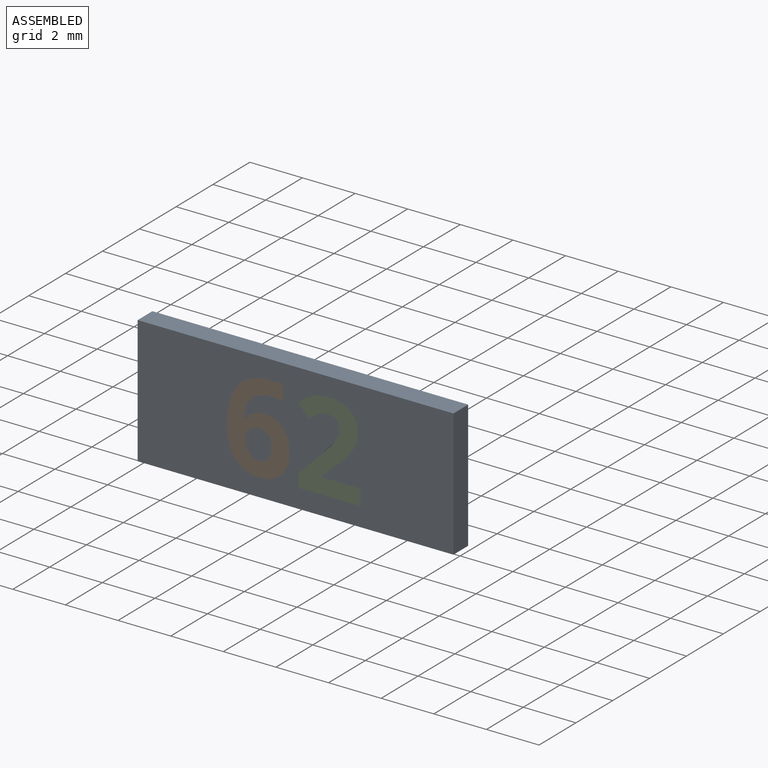
[diagram: assembled view]
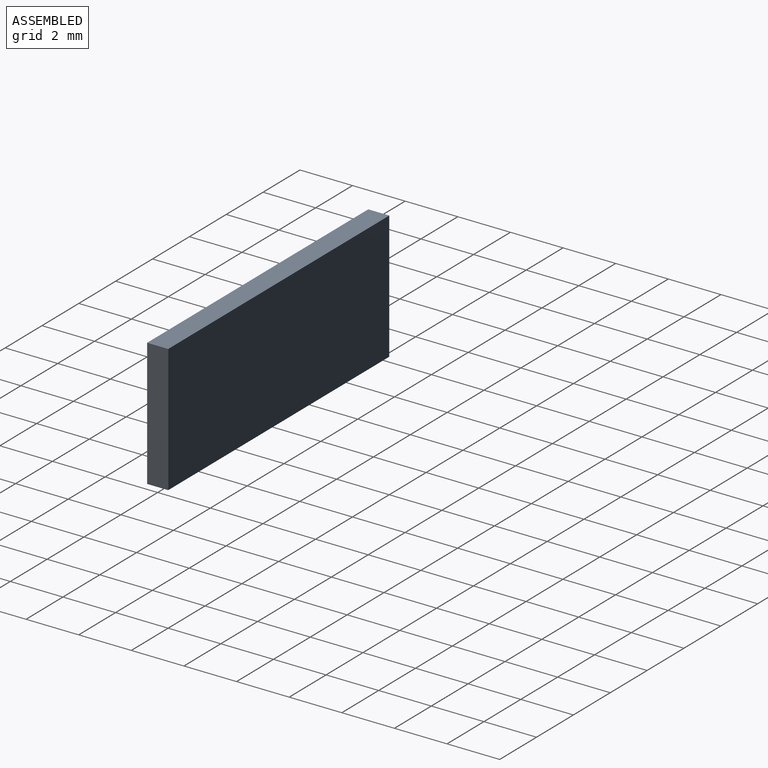
[diagram: assembled view, second angle]
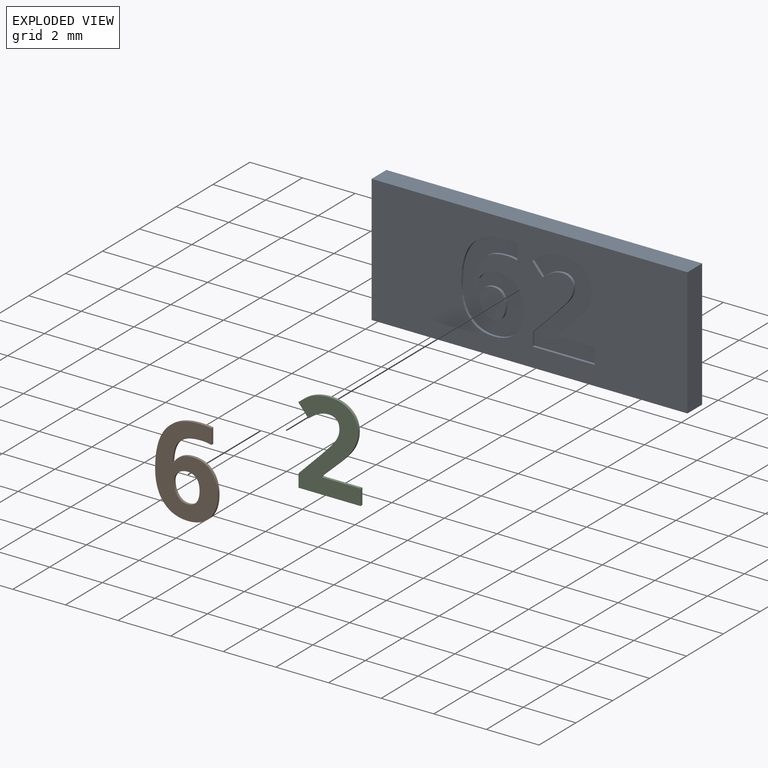
[diagram: exploded view]
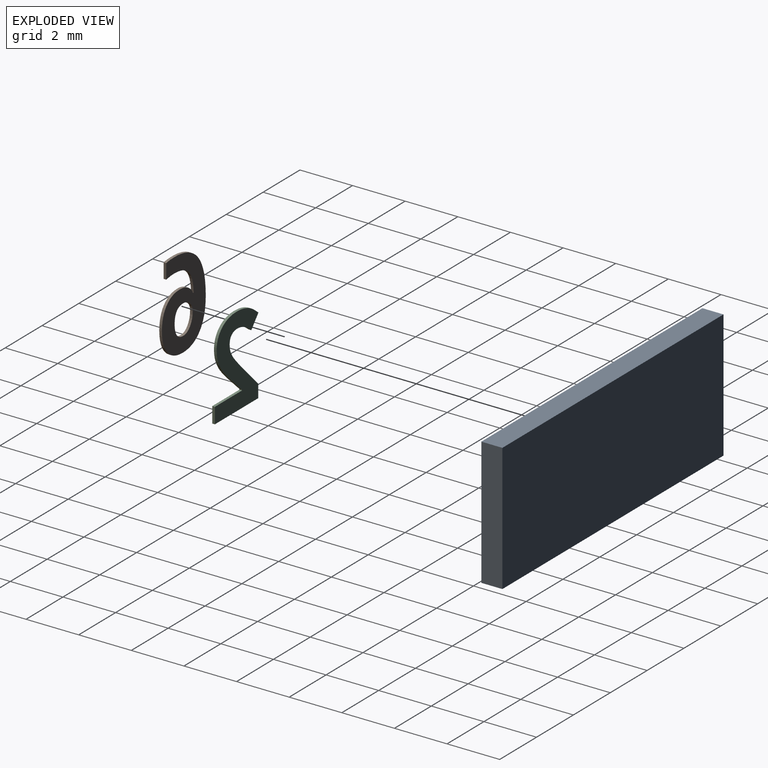
[diagram: exploded view, second angle]
ASSEMBLY  parts=3 mates=2
PART A: 58 faces, bbox 12x0.8x4.9 mm
  f0: plane 12x4.85mm, normal (0,-1,0), area 48.2mm2, adj f1,f2,f3,f4,f6,f7,f8,f9
  f1: plane 12x0.8mm, normal (0,0,-1), area 9.6mm2, adj f0,f2,f4,f5
  f2: plane 4.85x0.8mm, normal (1,0,0), area 3.9mm2, adj f0,f1,f3,f5
  f3: plane 12x0.8mm, normal (0,0,1), area 9.6mm2, adj f0,f2,f4,f5
  f4: plane 4.85x0.8mm, normal (-1,0,0), area 3.9mm2, adj f0,f1,f3,f5
  f5: plane 12x4.85mm, normal (0,1,0), area 58.2mm2, adj f1,f2,f3,f4
  f6: extruded ~0.8x0.15mm, area 0.1mm2, adj f0,f7,f30,f31
  f7: extruded ~0.51x0.43mm, area 0.1mm2, adj f0,f6,f8,f31
  f8: extruded ~0.65x0.17mm, area 0.1mm2, adj f0,f7,f9,f31
  f9: extruded ~0.84x0.32mm, area 0.1mm2, adj f0,f8,f10,f31
  f10: extruded ~0.85x0.3mm, area 0.1mm2, adj f0,f9,f11,f31
  f11: extruded ~0.78x0.26mm, area 0.1mm2, adj f0,f10,f12,f31
  f12: extruded ~0.71x0.28mm, area 0.1mm2, adj f0,f11,f13,f31
  f13: extruded ~0.73x0.39mm, area 0.1mm2, adj f0,f12,f14,f31
  f14: plane 0.1x0.03mm, normal (0,0,-1), area 0mm2, adj f0,f13,f15,f31
  f15: extruded ~0.62x0.14mm, area 0.1mm2, adj f0,f14,f16,f31
  f16: extruded ~0.35x0.33mm, area 0mm2, adj f0,f15,f17,f31
  f17: extruded ~0.6x0.11mm, area 0.1mm2, adj f0,f16,f18,f31
  f18: extruded ~0.41x0.1mm, area 0mm2, adj f0,f17,f19,f31
  f19: plane 0.57x0.1mm, normal (-1,0,0), area 0.1mm2, adj f0,f18,f20,f31
  f20: extruded ~0.45x0.1mm, area 0mm2, adj f0,f19,f21,f31
  f21: extruded ~1.27x0.49mm, area 0.1mm2, adj f0,f20,f30,f31
  f22: extruded ~0.37x0.19mm, area 0mm2, adj f23,f29,f31,f32
  f23: extruded ~0.46x0.14mm, area 0mm2, adj f22,f24,f31,f32
  f24: extruded ~0.33x0.15mm, area 0mm2, adj f23,f25,f31,f32
  f25: extruded ~0.37x0.14mm, area 0mm2, adj f24,f26,f31,f32
  f26: extruded ~0.34x0.14mm, area 0mm2, adj f25,f27,f31,f32
  f27: extruded ~0.39x0.11mm, area 0mm2, adj f26,f28,f31,f32
  f28: extruded ~0.44x0.12mm, area 0mm2, adj f27,f29,f31,f32
  f29: extruded ~0.35x0.15mm, area 0mm2, adj f22,f28,f31,f32
  f30: extruded ~1.49x0.42mm, area 0.2mm2, adj f0,f6,f21,f31
  f31: plane 3.46x2.38mm, normal (0,-1,0), area 4.8mm2, adj f6,f7,f8,f9,f10,f11,f12,f13
  f32: plane 1.12x0.98mm, normal (0,-1,0), area 0.9mm2, adj f22,f23,f24,f25,f26,f27,f28,f29
  f33: plane 0.6x0.1mm, normal (-1,0,0), area 0.1mm2, adj f0,f34,f56,f57
  f34: plane 1.47x0.1mm, normal (0,0,-1), area 0.1mm2, adj f0,f33,f35,f57
  f35: plane 0.1x0.03mm, normal (-1,0,0), area 0mm2, adj f0,f34,f36,f57
  f36: plane 0.43x0.41mm, normal (-0.69,0,0.73), area 0.1mm2, adj f0,f35,f37,f57
  f37: extruded ~0.61x0.61mm, area 0.1mm2, adj f0,f36,f38,f57
  f38: extruded ~0.42x0.25mm, area 0mm2, adj f0,f37,f39,f57
  f39: extruded ~0.44x0.1mm, area 0mm2, adj f0,f38,f40,f57
  f40: extruded ~0.48x0.13mm, area 0.1mm2, adj f0,f39,f41,f57
  f41: extruded ~0.38x0.32mm, area 0.1mm2, adj f0,f40,f42,f57
  f42: extruded ~0.56x0.12mm, area 0.1mm2, adj f0,f41,f43,f57
  f43: extruded ~0.43x0.1mm, area 0mm2, adj f0,f42,f44,f57
  f44: extruded ~0.36x0.13mm, area 0mm2, adj f0,f43,f45,f57
  f45: extruded ~0.41x0.3mm, area 0.1mm2, adj f0,f44,f46,f57
  f46: plane 0.46x0.39mm, normal (0.76,0,0.65), area 0.1mm2, adj f0,f45,f47,f57
  f47: extruded ~0.39x0.26mm, area 0mm2, adj f0,f46,f48,f57
  f48: extruded ~0.38x0.1mm, area 0mm2, adj f0,f47,f49,f57
  f49: extruded ~0.3x0.1mm, area 0mm2, adj f0,f48,f50,f57
  f50: extruded ~0.3x0.11mm, area 0mm2, adj f0,f49,f51,f57
  f51: extruded ~0.26x0.1mm, area 0mm2, adj f0,f50,f52,f57
  f52: extruded ~0.28x0.17mm, area 0mm2, adj f0,f51,f53,f57
  f53: extruded ~0.53x0.49mm, area 0.1mm2, adj f0,f52,f54,f57
  f54: plane 0.86x0.85mm, normal (0.71,0,-0.7), area 0.1mm2, adj f0,f53,f55,f57
  f55: plane 0.5x0.1mm, normal (1,0,0), area 0mm2, adj f0,f54,f56,f57
  f56: plane 2.36x0.1mm, normal (0,0,1), area 0.2mm2, adj f0,f33,f55,f57
  f57: plane 3.42x2.37mm, normal (0,-1,0), area 4.2mm2, adj f33,f34,f35,f36,f37,f38,f39,f40
PART B: 27 faces, bbox 2.4x0.1x3.5 mm
  f0: plane 3.46x2.38mm, normal (0,-1,0), area 4.8mm2, adj f1,f2,f3,f4,f5,f6,f7,f8
  f1: extruded ~0.51x0.43mm, area 0.1mm2, adj f0,f2,f20,f22
  f2: extruded ~0.65x0.17mm, area 0.1mm2, adj f0,f1,f3,f20
  f3: extruded ~0.84x0.32mm, area 0.1mm2, adj f0,f2,f4,f20
  f4: extruded ~0.85x0.3mm, area 0.1mm2, adj f0,f3,f5,f20
  f5: extruded ~0.78x0.26mm, area 0.1mm2, adj f0,f4,f6,f20
  f6: extruded ~0.71x0.28mm, area 0.1mm2, adj f0,f5,f7,f20
  f7: extruded ~0.73x0.39mm, area 0.1mm2, adj f0,f6,f8,f20
  f8: plane 0.1x0.03mm, normal (0,0,1), area 0mm2, adj f0,f7,f9,f20
  f9: extruded ~0.62x0.14mm, area 0.1mm2, adj f0,f8,f10,f20
  f10: extruded ~0.35x0.33mm, area 0mm2, adj f0,f9,f11,f20
  f11: extruded ~0.6x0.11mm, area 0.1mm2, adj f0,f10,f12,f20
  f12: extruded ~0.41x0.1mm, area 0mm2, adj f0,f11,f13,f20
  f13: plane 0.57x0.1mm, normal (1,0,0), area 0.1mm2, adj f0,f12,f14,f20
  f14: extruded ~0.45x0.1mm, area 0mm2, adj f0,f13,f20,f21
  f15: extruded ~0.46x0.14mm, area 0mm2, adj f0,f16,f20,f25
  f16: extruded ~0.33x0.15mm, area 0mm2, adj f0,f15,f17,f20
  f17: extruded ~0.37x0.14mm, area 0mm2, adj f0,f16,f18,f20
  f18: extruded ~0.34x0.14mm, area 0mm2, adj f0,f17,f19,f20
  f19: extruded ~0.39x0.11mm, area 0mm2, adj f0,f18,f20,f24
  f20: plane 3.46x2.38mm, normal (0,1,0), area 4.8mm2, adj f1,f2,f3,f4,f5,f6,f7,f8
  f21: extruded ~1.27x0.49mm, area 0.1mm2, adj f0,f14,f20,f23
  f22: extruded ~0.8x0.15mm, area 0.1mm2, adj f0,f1,f20,f23
  f23: extruded ~1.49x0.42mm, area 0.2mm2, adj f0,f20,f21,f22
  f24: extruded ~0.44x0.12mm, area 0mm2, adj f0,f19,f20,f26
  f25: extruded ~0.37x0.19mm, area 0mm2, adj f0,f15,f20,f26
  f26: extruded ~0.35x0.15mm, area 0mm2, adj f0,f20,f24,f25
PART C: 26 faces, bbox 2.4x0.1x3.4 mm
  f0: plane 3.42x2.37mm, normal (0,-1,0), area 4.2mm2, adj f1,f2,f3,f4,f5,f6,f7,f8
  f1: plane 1.47x0.1mm, normal (0,0,1), area 0.1mm2, adj f0,f2,f22,f24
  f2: plane 0.1x0.03mm, normal (1,0,0), area 0mm2, adj f0,f1,f3,f22
  f3: plane 0.43x0.41mm, normal (0.69,0,-0.73), area 0.1mm2, adj f0,f2,f4,f22
  f4: extruded ~0.61x0.61mm, area 0.1mm2, adj f0,f3,f5,f22
  f5: extruded ~0.42x0.25mm, area 0mm2, adj f0,f4,f6,f22
  f6: extruded ~0.44x0.1mm, area 0mm2, adj f0,f5,f7,f22
  f7: extruded ~0.48x0.13mm, area 0.1mm2, adj f0,f6,f8,f22
  f8: extruded ~0.38x0.32mm, area 0.1mm2, adj f0,f7,f9,f22
  f9: extruded ~0.56x0.12mm, area 0.1mm2, adj f0,f8,f10,f22
  f10: extruded ~0.43x0.1mm, area 0mm2, adj f0,f9,f11,f22
  f11: extruded ~0.36x0.13mm, area 0mm2, adj f0,f10,f12,f22
  f12: extruded ~0.41x0.3mm, area 0.1mm2, adj f0,f11,f13,f22
  f13: plane 0.46x0.39mm, normal (-0.76,0,-0.65), area 0.1mm2, adj f0,f12,f14,f22
  f14: extruded ~0.39x0.26mm, area 0mm2, adj f0,f13,f15,f22
  f15: extruded ~0.38x0.1mm, area 0mm2, adj f0,f14,f16,f22
  f16: extruded ~0.3x0.1mm, area 0mm2, adj f0,f15,f17,f22
  f17: extruded ~0.3x0.11mm, area 0mm2, adj f0,f16,f18,f22
  f18: extruded ~0.26x0.1mm, area 0mm2, adj f0,f17,f19,f22
  f19: extruded ~0.28x0.17mm, area 0mm2, adj f0,f18,f20,f22
  f20: extruded ~0.53x0.49mm, area 0.1mm2, adj f0,f19,f21,f22
  f21: plane 0.86x0.85mm, normal (-0.71,0,0.7), area 0.1mm2, adj f0,f20,f22,f23
  f22: plane 3.42x2.37mm, normal (0,1,0), area 4.2mm2, adj f1,f2,f3,f4,f5,f6,f7,f8
  f23: plane 0.5x0.1mm, normal (-1,0,0), area 0mm2, adj f0,f21,f22,f25
  f24: plane 0.6x0.1mm, normal (1,0,0), area 0.1mm2, adj f0,f1,f22,f25
  f25: plane 2.36x0.1mm, normal (0,0,-1), area 0.2mm2, adj f0,f22,f23,f24
PLACE A t=(0.02,0.41,0)mm
PLACE B t=(-2.9,0.41,0)mm
PLACE C t=(-0.2,0.41,0)mm
MATE fastened C.f0 <-> A.f0  axis (0,-1,0) through (0.13,-0.39,-1.7)mm
MATE fastened B.f0 <-> A.f0  axis (0,-1,0) through (-0.45,-0.39,1.11)mm
